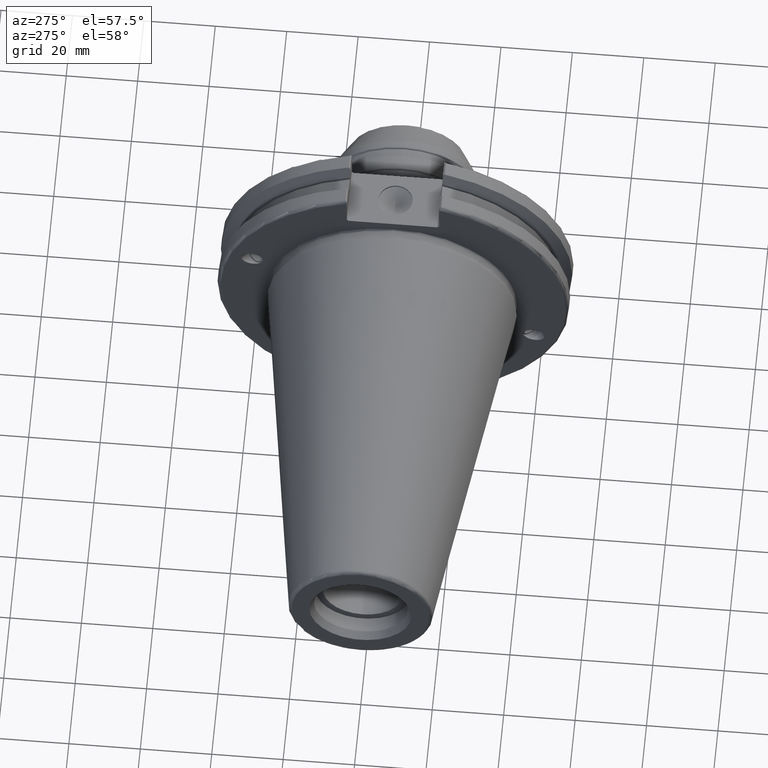
[diagram: clean part render]
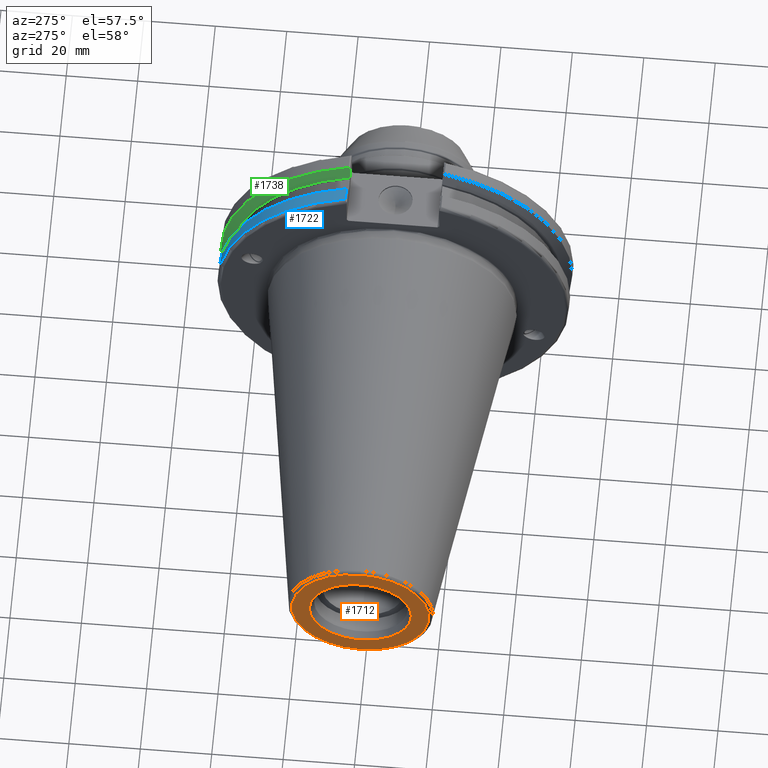
[diagram: same view with three faces highlighted in distinct colors, each labeled with its STEP entity id]
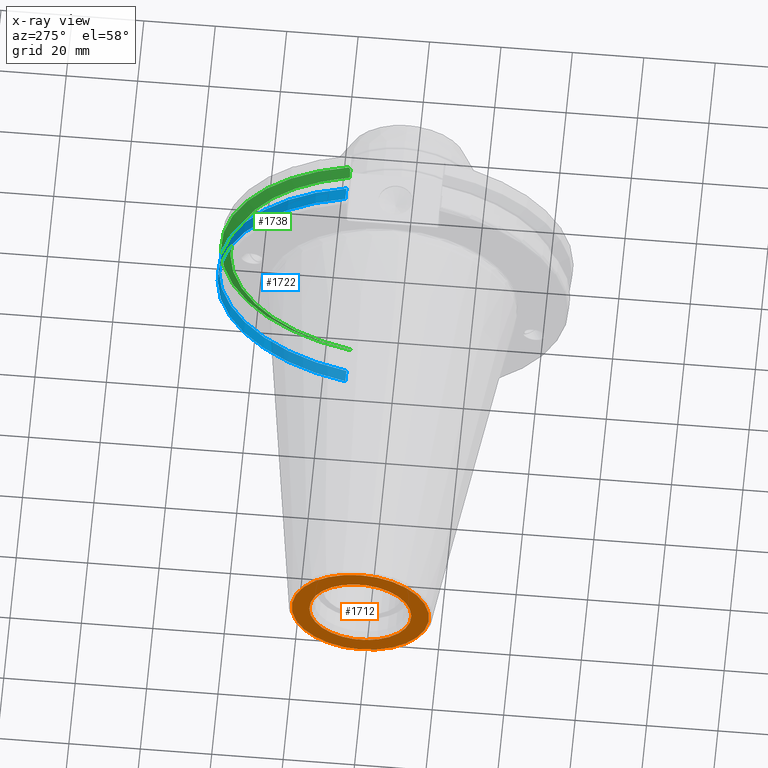
[diagram: x-ray of the same camera — body ghosted, the three highlighted faces saturated]
A machine part, auxiliary view with three faces highlighted in distinct colors.
The next image is the same camera in x-ray (body ghosted, the three faces saturated) — at least one of them is partly hidden behind the body in this view.
Their STEP definitions:

[orange] entity #1712 — the highlighted planar face has unit normal (-1, 0, 0).
#86=FACE_BOUND('',#538,.T.);
#105=PLANE('',#1945);
#424=FACE_OUTER_BOUND('',#537,.T.);
#537=EDGE_LOOP('',(#1488));
#538=EDGE_LOOP('',(#1489));
#663=CIRCLE('',#1944,19.2435889303637);
#664=CIRCLE('',#1946,14.2875);
#834=VERTEX_POINT('',#3166);
#835=VERTEX_POINT('',#3170);
#1067=EDGE_CURVE('',#834,#834,#663,.T.);
#1068=EDGE_CURVE('',#835,#835,#664,.T.);
#1488=ORIENTED_EDGE('',*,*,#1067,.F.);
#1489=ORIENTED_EDGE('',*,*,#1068,.T.);
#1712=ADVANCED_FACE('',(#424,#86),#105,.T.);
#1944=AXIS2_PLACEMENT_3D('',#3168,#2424,#2425);
#1945=AXIS2_PLACEMENT_3D('',#3169,#2426,#2427);
#1946=AXIS2_PLACEMENT_3D('',#3171,#2428,#2429);
#2424=DIRECTION('center_axis',(1.,0.,0.));
#2425=DIRECTION('ref_axis',(0.,-1.,1.83697019872103E-16));
#2426=DIRECTION('center_axis',(-1.,0.,0.));
#2427=DIRECTION('ref_axis',(0.,0.,1.));
#2428=DIRECTION('center_axis',(1.,0.,0.));
#2429=DIRECTION('ref_axis',(0.,0.,-1.));
#3166=CARTESIAN_POINT('',(-101.6,-2.35665995876774E-15,19.2435889303637));
#3168=CARTESIAN_POINT('Origin',(-101.6,0.,0.));
#3169=CARTESIAN_POINT('Origin',(-101.6,20.1083333333333,0.));
#3170=CARTESIAN_POINT('',(-101.6,-14.2875,-1.74971411428178E-15));
#3171=CARTESIAN_POINT('Origin',(-101.6,0.,0.));

[blue] entity #1722 — the highlighted cylindrical surface (partial cylindrical patch) has radius 49.2125 mm, axis along (1, 0, 0).
#212=LINE('',#3157,#306);
#226=LINE('',#3216,#320);
#306=VECTOR('',#2415,10.);
#320=VECTOR('',#2467,10.);
#352=CYLINDRICAL_SURFACE('',#1958,49.2125);
#434=FACE_OUTER_BOUND('',#548,.T.);
#548=EDGE_LOOP('',(#1535,#1536,#1537,#1538));
#659=CIRCLE('',#1938,49.2125);
#667=CIRCLE('',#1959,49.2125);
#829=VERTEX_POINT('',#3130);
#830=VERTEX_POINT('',#3139);
#831=VERTEX_POINT('',#3156);
#845=VERTEX_POINT('',#3215);
#1059=EDGE_CURVE('',#829,#830,#659,.T.);
#1062=EDGE_CURVE('',#830,#831,#212,.T.);
#1087=EDGE_CURVE('',#845,#829,#226,.T.);
#1088=EDGE_CURVE('',#831,#845,#667,.T.);
#1535=ORIENTED_EDGE('',*,*,#1059,.F.);
#1536=ORIENTED_EDGE('',*,*,#1087,.F.);
#1537=ORIENTED_EDGE('',*,*,#1088,.F.);
#1538=ORIENTED_EDGE('',*,*,#1062,.F.);
#1722=ADVANCED_FACE('',(#434),#352,.T.);
#1938=AXIS2_PLACEMENT_3D('',#3140,#2411,#2412);
#1958=AXIS2_PLACEMENT_3D('',#3214,#2465,#2466);
#1959=AXIS2_PLACEMENT_3D('',#3217,#2468,#2469);
#2411=DIRECTION('center_axis',(-1.,0.,0.));
#2412=DIRECTION('ref_axis',(0.,1.,-6.12323399573677E-17));
#2415=DIRECTION('',(1.,0.,0.));
#2465=DIRECTION('center_axis',(1.,0.,0.));
#2466=DIRECTION('ref_axis',(0.,1.,0.));
#2467=DIRECTION('',(-1.,0.,0.));
#2468=DIRECTION('center_axis',(1.,0.,0.));
#2469=DIRECTION('ref_axis',(0.,0.,-1.));
#3130=CARTESIAN_POINT('',(4.175,13.4317035994433,47.3440544806494));
#3139=CARTESIAN_POINT('',(4.175,13.4317035994433,-47.3440544806494));
#3140=CARTESIAN_POINT('Origin',(4.175,0.,0.));
#3156=CARTESIAN_POINT('',(7.60089096595127,13.4317035994433,-47.3440544806494));
#3157=CARTESIAN_POINT('',(5.38794548297563,13.4317035994433,-47.3440544806494));
#3214=CARTESIAN_POINT('Origin',(5.38794548297563,0.,0.));
#3215=CARTESIAN_POINT('',(7.60089096595127,13.4317035994433,47.3440544806494));
#3216=CARTESIAN_POINT('',(5.38794548297563,13.4317035994433,47.3440544806494));
#3217=CARTESIAN_POINT('Origin',(7.60089096595127,0.,0.));

[green] entity #1738 — the highlighted conical surface has half-angle 60 deg.
#15=(
BOUNDED_CURVE()
B_SPLINE_CURVE(2,(#2980,#2981,#2982),.UNSPECIFIED.,.F.,.F.)
B_SPLINE_CURVE_WITH_KNOTS((3,3),(0.325260944932476,0.390084992222204),
 .UNSPECIFIED.)
CURVE()
GEOMETRIC_REPRESENTATION_ITEM()
RATIONAL_B_SPLINE_CURVE((1.00019140645951,1.00011477674838,1.))
REPRESENTATION_ITEM('')
);
#17=(
BOUNDED_CURVE()
B_SPLINE_CURVE(2,(#3005,#3006,#3007),.UNSPECIFIED.,.F.,.F.)
B_SPLINE_CURVE_WITH_KNOTS((3,3),(0.0558332664477548,0.331657177124506),
 .UNSPECIFIED.)
CURVE()
GEOMETRIC_REPRESENTATION_ITEM()
RATIONAL_B_SPLINE_CURVE((1.00012873636922,1.00038235574886,1.))
REPRESENTATION_ITEM('')
);
#25=(
BOUNDED_CURVE()
B_SPLINE_CURVE(2,(#3190,#3191,#3192),.UNSPECIFIED.,.F.,.F.)
B_SPLINE_CURVE_WITH_KNOTS((3,3),(0.,0.275823910673941),.UNSPECIFIED.)
CURVE()
GEOMETRIC_REPRESENTATION_ITEM()
RATIONAL_B_SPLINE_CURVE((1.,1.00038235575037,1.00012873636973))
REPRESENTATION_ITEM('')
);
#29=(
BOUNDED_CURVE()
B_SPLINE_CURVE(2,(#3229,#3230,#3231),.UNSPECIFIED.,.F.,.F.)
B_SPLINE_CURVE_WITH_KNOTS((3,3),(0.,0.0648240472897797),.UNSPECIFIED.)
CURVE()
GEOMETRIC_REPRESENTATION_ITEM()
RATIONAL_B_SPLINE_CURVE((1.,1.00011477674834,1.00019140645944))
REPRESENTATION_ITEM('')
);
#136=CONICAL_SURFACE('',#1986,47.8172386482472,1.0471975511966);
#450=FACE_OUTER_BOUND('',#564,.T.);
#564=EDGE_LOOP('',(#1604,#1605,#1606,#1607,#1608,#1609));
#668=CIRCLE('',#1961,49.2125);
#678=CIRCLE('',#1984,46.4219772964944);
#798=VERTEX_POINT('',#2977);
#799=VERTEX_POINT('',#2979);
#805=VERTEX_POINT('',#3003);
#837=VERTEX_POINT('',#3187);
#838=VERTEX_POINT('',#3189);
#846=VERTEX_POINT('',#3219);
#1017=EDGE_CURVE('',#798,#799,#15,.T.);
#1026=EDGE_CURVE('',#798,#805,#17,.T.);
#1077=EDGE_CURVE('',#838,#837,#25,.T.);
#1089=EDGE_CURVE('',#799,#846,#668,.T.);
#1093=EDGE_CURVE('',#846,#837,#29,.T.);
#1105=EDGE_CURVE('',#805,#838,#678,.T.);
#1604=ORIENTED_EDGE('',*,*,#1017,.F.);
#1605=ORIENTED_EDGE('',*,*,#1026,.T.);
#1606=ORIENTED_EDGE('',*,*,#1105,.T.);
#1607=ORIENTED_EDGE('',*,*,#1077,.T.);
#1608=ORIENTED_EDGE('',*,*,#1093,.F.);
#1609=ORIENTED_EDGE('',*,*,#1089,.F.);
#1738=ADVANCED_FACE('',(#450),#136,.T.);
#1961=AXIS2_PLACEMENT_3D('',#3220,#2472,#2473);
#1984=AXIS2_PLACEMENT_3D('',#3258,#2521,#2522);
#1986=AXIS2_PLACEMENT_3D('',#3260,#2525,#2526);
#2472=DIRECTION('center_axis',(1.,0.,0.));
#2473=DIRECTION('ref_axis',(0.,0.,-1.));
#2521=DIRECTION('center_axis',(1.,0.,0.));
#2522=DIRECTION('ref_axis',(0.,0.,-1.));
#2525=DIRECTION('center_axis',(1.,0.,0.));
#2526=DIRECTION('ref_axis',(0.,1.,0.));
#2977=CARTESIAN_POINT('',(14.3747103943758,12.95,-46.9780755322918));
#2979=CARTESIAN_POINT('',(14.6531090340487,13.4317035994433,-47.3440544806494));
#2980=CARTESIAN_POINT('Ctrl Pts',(14.3747103943758,12.95,-46.9780755322918));
#2981=CARTESIAN_POINT('Ctrl Pts',(14.5128310333618,13.1896660169966,-47.1601640966264));
#2982=CARTESIAN_POINT('Ctrl Pts',(14.6531090340487,13.4317035994433,-47.3440544806494));
#3003=CARTESIAN_POINT('',(13.042,12.95,-44.5791147973604));
#3005=CARTESIAN_POINT('Ctrl Pts',(14.3747103943758,12.95,-46.9780755322918));
#3006=CARTESIAN_POINT('Ctrl Pts',(13.6908955094237,12.95,-45.7494966801829));
#3007=CARTESIAN_POINT('Ctrl Pts',(13.042,12.95,-44.5791147973604));
#3187=CARTESIAN_POINT('',(14.3747103943757,12.95,46.9780755322917));
#3189=CARTESIAN_POINT('',(13.042,12.95,44.5791147973604));
#3190=CARTESIAN_POINT('Ctrl Pts',(13.042,12.95,44.5791147973604));
#3191=CARTESIAN_POINT('Ctrl Pts',(13.6908955094594,12.95,45.7494966802471));
#3192=CARTESIAN_POINT('Ctrl Pts',(14.3747103943757,12.95,46.9780755322917));
#3219=CARTESIAN_POINT('',(14.6531090340487,13.4317035994433,47.3440544806494));
#3220=CARTESIAN_POINT('Origin',(14.6531090340487,0.,0.));
#3229=CARTESIAN_POINT('Ctrl Pts',(14.6531090340487,13.4317035994433,47.3440544806494));
#3230=CARTESIAN_POINT('Ctrl Pts',(14.5128310333618,13.1896660169966,47.1601640966265));
#3231=CARTESIAN_POINT('Ctrl Pts',(14.3747103943757,12.95,46.9780755322917));
#3258=CARTESIAN_POINT('Origin',(13.042,0.,0.));
#3260=CARTESIAN_POINT('Origin',(13.8475545170244,0.,0.));